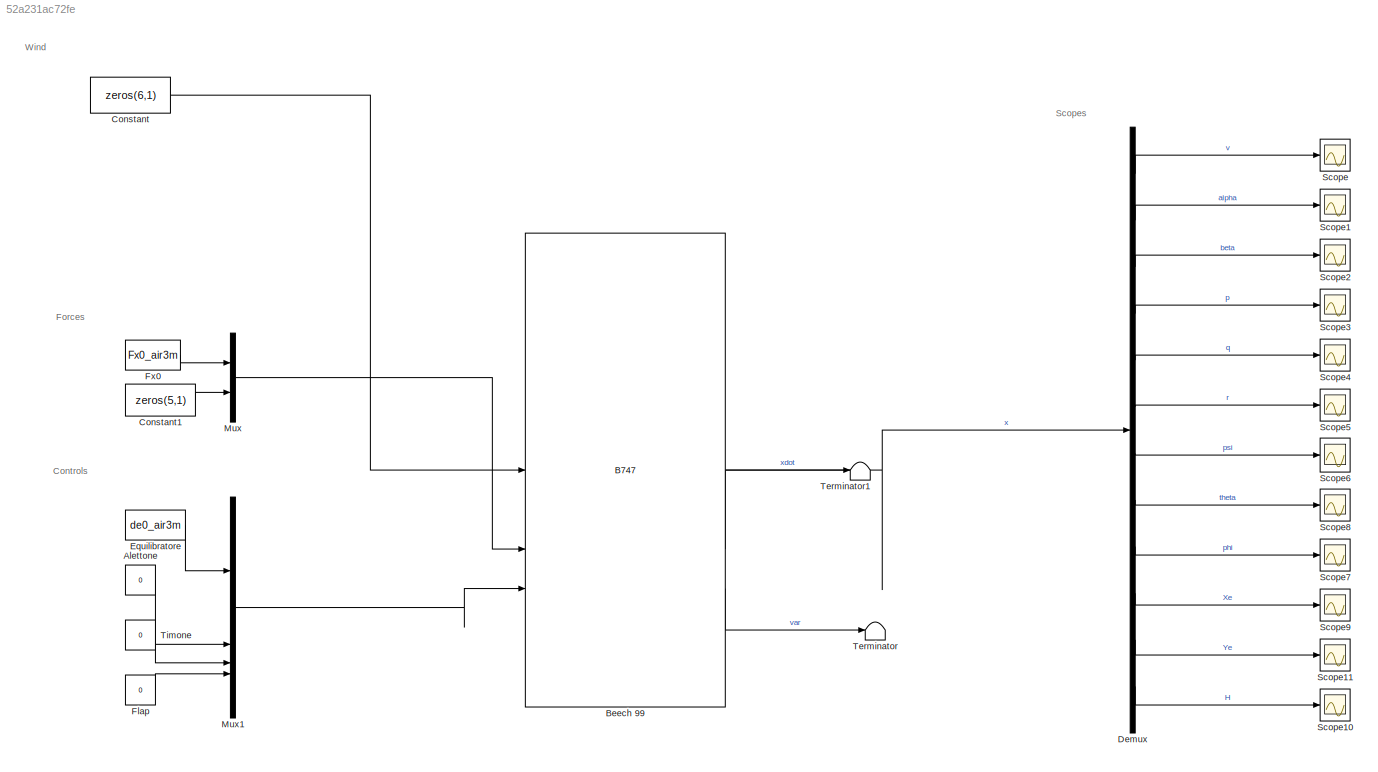
MODEL slx_52a231ac72fe
KIND model
CONFIG AbsTol = auto
CONFIG EnableMultiTasking = off
CONFIG FixedStep = auto
CONFIG MaxStep = auto
CONFIG MinStep = auto
CONFIG RelTol = 1e-3
CONFIG SampleTimeConstraint = Unconstrained
CONFIG SolverName = VariableStepAuto
CONFIG StartTime = 0.0
CONFIG StopTime = 10.0
BLOCK [Reference]  Beech 99   REF=airlib/B747  (lib defined in mdl_00852699f85c, mdl_b3a2112ccc5d, +1 more)
  SourceBlock = airlib/B747
  SourceProductName = Aircraft Library
  SourceType = General Nonlinear Aircraft Model
BLOCK [Constant] Alettone
  Value = 0
BLOCK [Constant] Constant
  Value = zeros(6,1)
BLOCK [Constant] Constant1
  Value = zeros(5,1)
BLOCK [Demux] Demux
  Outputs = 12
BLOCK [Constant] Equilibratore
  Value = de0_air3m
BLOCK [Constant] Flap
  Value = 0
BLOCK [Constant] Fx0
  Value = Fx0_air3m
BLOCK [Mux] Mux
  DisplayOption = bar
  Inputs = 2
BLOCK [Mux] Mux1
  DisplayOption = bar
BLOCK [Scope] Scope
  Floating = off
  NumInputPorts = 1
  ScopeSpecificationString = Simulink.scopes.TimeScopeBlockCfg('CurrentConfiguration', extmgr.ConfigurationSet(extmgr.Configuration('Core','General UI',true),extmgr.Configuration('Core','Source UI',true),extmgr.Configuration('Sources','WiredSimulink',true,'DataLoggingVariableName','ScopeData1'),extmgr.Configuration('Visuals','Time Domain',true,'SerializedDisplays',{struct('MinYLimReal','85.00000','MaxYLimReal','105.00000','YL...<+1399ch>
BLOCK [Scope] Scope1
  Floating = off
  NumInputPorts = 1
  ScopeSpecificationString = Simulink.scopes.TimeScopeBlockCfg('CurrentConfiguration', extmgr.ConfigurationSet(extmgr.Configuration('Core','General UI',true),extmgr.Configuration('Core','Source UI',true),extmgr.Configuration('Sources','WiredSimulink',true,'DataLoggingVariableName','ScopeData2'),extmgr.Configuration('Visuals','Time Domain',true,'SerializedDisplays',{struct('MinYLimReal','0.001261184018989339','MaxYLimReal','0....<+1499ch>
BLOCK [Scope] Scope10
  Floating = off
  NumInputPorts = 1
  ScopeSpecificationString = Simulink.scopes.TimeScopeBlockCfg('CurrentConfiguration', extmgr.ConfigurationSet(extmgr.Configuration('Core','General UI',true),extmgr.Configuration('Core','Source UI',true),extmgr.Configuration('Sources','WiredSimulink',true,'DataLoggingVariableName','ScopeData3'),extmgr.Configuration('Visuals','Time Domain',true,'SerializedDisplays',{struct('MinYLimReal','170.00000','MaxYLimReal','370.00000','Y...<+1375ch>
BLOCK [Scope] Scope11
  Floating = off
  NumInputPorts = 1
  ScopeSpecificationString = Simulink.scopes.TimeScopeBlockCfg('CurrentConfiguration', extmgr.ConfigurationSet(extmgr.Configuration('Core','General UI',true),extmgr.Configuration('Core','Source UI',true),extmgr.Configuration('Sources','WiredSimulink',true,'DataLoggingVariableName','ScopeData4'),extmgr.Configuration('Visuals','Time Domain',true),extmgr.Configuration('Tools','Plot Navigation',true),extmgr.Configuration('Tools',...<+40ch>
BLOCK [Scope] Scope2
  Floating = off
  NumInputPorts = 1
  ScopeSpecificationString = Simulink.scopes.TimeScopeBlockCfg('CurrentConfiguration', extmgr.ConfigurationSet(extmgr.Configuration('Core','General UI',true),extmgr.Configuration('Core','Source UI',true),extmgr.Configuration('Sources','WiredSimulink',true,'DataLoggingVariableName','ScopeData5'),extmgr.Configuration('Visuals','Time Domain',true,'SerializedDisplays',{struct('MinYLimReal','-1.00000','MaxYLimReal','1.00000','YLab...<+1391ch>
BLOCK [Scope] Scope3
  Floating = off
  NumInputPorts = 1
  ScopeSpecificationString = Simulink.scopes.TimeScopeBlockCfg('CurrentConfiguration', extmgr.ConfigurationSet(extmgr.Configuration('Core','General UI',true),extmgr.Configuration('Core','Source UI',true),extmgr.Configuration('Sources','WiredSimulink',true,'DataLoggingVariableName','ScopeData6'),extmgr.Configuration('Visuals','Time Domain',true,'SerializedDisplays',{struct('MinYLimReal','-1.00000','MaxYLimReal','1.00000','YLab...<+1395ch>
BLOCK [Scope] Scope4
  Floating = off
  NumInputPorts = 1
  ScopeSpecificationString = Simulink.scopes.TimeScopeBlockCfg('CurrentConfiguration', extmgr.ConfigurationSet(extmgr.Configuration('Core','General UI',true),extmgr.Configuration('Core','Source UI',true),extmgr.Configuration('Sources','WiredSimulink',true,'DataLoggingVariableName','ScopeData7'),extmgr.Configuration('Visuals','Time Domain',true,'SerializedDisplays',{struct('MinYLimReal','-0.000000000000000004','MaxYLimReal','0...<+1492ch>
BLOCK [Scope] Scope5
  Floating = off
  NumInputPorts = 1
  ScopeSpecificationString = Simulink.scopes.TimeScopeBlockCfg('CurrentConfiguration', extmgr.ConfigurationSet(extmgr.Configuration('Core','General UI',true),extmgr.Configuration('Core','Source UI',true),extmgr.Configuration('Sources','WiredSimulink',true,'DataLoggingVariableName','ScopeData8'),extmgr.Configuration('Visuals','Time Domain',true,'SerializedDisplays',{struct('MinYLimReal','-1.00000','MaxYLimReal','1.00000','YLab...<+1388ch>
BLOCK [Scope] Scope6
  Floating = off
  NumInputPorts = 1
  ScopeSpecificationString = Simulink.scopes.TimeScopeBlockCfg('CurrentConfiguration', extmgr.ConfigurationSet(extmgr.Configuration('Core','General UI',true),extmgr.Configuration('Core','Source UI',true),extmgr.Configuration('Sources','WiredSimulink',true,'DataLoggingVariableName','ScopeData9'),extmgr.Configuration('Visuals','Time Domain',true,'SerializedDisplays',{struct('MinYLimReal','-1.00000','MaxYLimReal','1.00000','YLab...<+1415ch>
BLOCK [Scope] Scope7
  Floating = off
  NumInputPorts = 1
  ScopeSpecificationString = Simulink.scopes.TimeScopeBlockCfg('CurrentConfiguration', extmgr.ConfigurationSet(extmgr.Configuration('Core','General UI',true),extmgr.Configuration('Core','Source UI',true),extmgr.Configuration('Sources','WiredSimulink',true,'DataLoggingVariableName','ScopeData10'),extmgr.Configuration('Visuals','Time Domain',true,'SerializedDisplays',{struct('MinYLimReal','-1.00000','MaxYLimReal','1.00000','YLa...<+1363ch>
BLOCK [Scope] Scope8
  Floating = off
  NumInputPorts = 1
  ScopeSpecificationString = Simulink.scopes.TimeScopeBlockCfg('CurrentConfiguration', extmgr.ConfigurationSet(extmgr.Configuration('Core','General UI',true),extmgr.Configuration('Core','Source UI',true),extmgr.Configuration('Sources','WiredSimulink',true,'DataLoggingVariableName','ScopeData11'),extmgr.Configuration('Visuals','Time Domain',true,'SerializedDisplays',{struct('MinYLimReal','0.00126118401898931','MaxYLimReal','0....<+1459ch>
BLOCK [Scope] Scope9
  Floating = off
  NumInputPorts = 1
  ScopeSpecificationString = Simulink.scopes.TimeScopeBlockCfg('CurrentConfiguration', extmgr.ConfigurationSet(extmgr.Configuration('Core','General UI',true),extmgr.Configuration('Core','Source UI',true),extmgr.Configuration('Sources','WiredSimulink',true),extmgr.Configuration('Visuals','Time Domain',true),extmgr.Configuration('Tools','Plot Navigation',true),extmgr.Configuration('Tools','Measurements',true)),'Version','2023b'...<+1ch>
BLOCK [Terminator] Terminator
BLOCK [Terminator] Terminator1
BLOCK [Constant] Timone
  Value = 0
ANNOTATION (root): Controls
ANNOTATION (root): Forces
ANNOTATION (root): Scopes
ANNOTATION (root): Wind
LINE  Beech 99 :1 -> Demux:1
LINE  Beech 99 :2 -> Terminator1:1
LINE  Beech 99 :3 -> Terminator:1
LINE Alettone:1 -> Mux1:2
LINE Constant1:1 -> Mux:2
LINE Constant:1 ->  Beech 99 :1
LINE Demux:1 -> Scope:1
LINE Demux:10 -> Scope9:1
LINE Demux:11 -> Scope11:1
LINE Demux:12 -> Scope10:1
LINE Demux:2 -> Scope1:1
LINE Demux:3 -> Scope2:1
LINE Demux:4 -> Scope3:1
LINE Demux:5 -> Scope4:1
LINE Demux:6 -> Scope5:1
LINE Demux:7 -> Scope6:1
LINE Demux:8 -> Scope8:1
LINE Demux:9 -> Scope7:1
LINE Equilibratore:1 -> Mux1:1
LINE Flap:1 -> Mux1:4
LINE Fx0:1 -> Mux:1
LINE Mux1:1 ->  Beech 99 :3
LINE Mux:1 ->  Beech 99 :2
LINE Timone:1 -> Mux1:3
